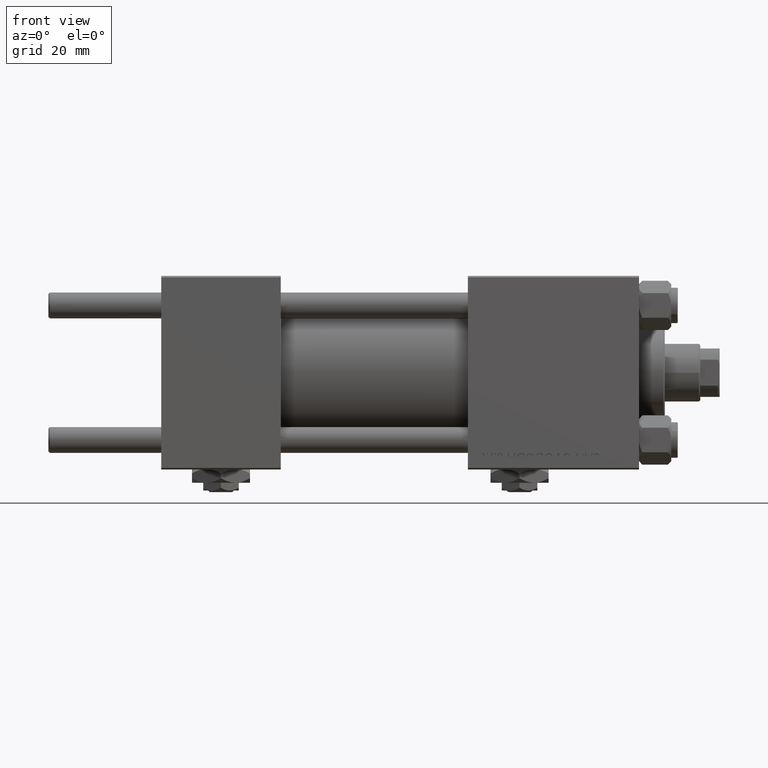
[diagram: clean part render]
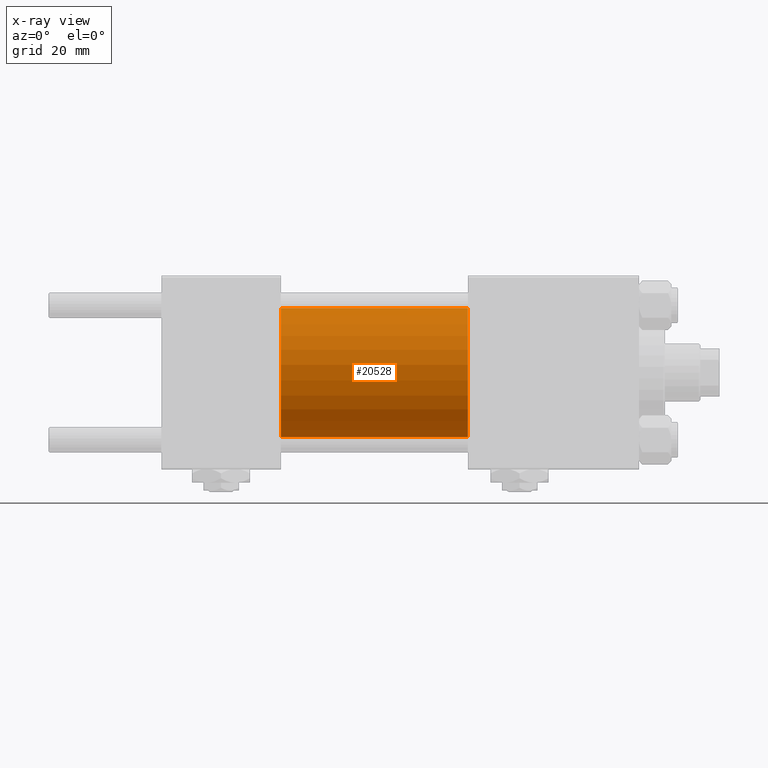
[diagram: x-ray — body ghosted, one internal face saturated and labeled with its STEP entity id]
A machine part, front view, then the same camera in x-ray: the body is ghosted and one INTERNAL B-rep face — a face not visible from any outside direction — is saturated and labeled: STEP entity #20528.
In plain terms, the highlighted cylindrical surface (partial cylindrical patch) has radius 20 mm, axis along (-1, -0, -0).
Its self-contained STEP definition (entity closure, byte-faithful):
#1116 = CIRCLE ( 'NONE', #12027, 20.00000000000000000 ) ;
#1186 = VECTOR ( 'NONE', #26924, 1000.000000000000000 ) ;
#2235 = CARTESIAN_POINT ( 'NONE',  ( 95.00000000000000000, 0.000000000000000000, 20.00000000000000000 ) ) ;
#4549 = VERTEX_POINT ( 'NONE', #48037 ) ;
#5497 = EDGE_CURVE ( 'NONE', #32325, #4549, #1116, .T. ) ;
#7806 = EDGE_CURVE ( 'NONE', #7945, #4549, #46887, .T. ) ;
#7945 = VERTEX_POINT ( 'NONE', #29501 ) ;
#9031 = DIRECTION ( 'NONE',  ( 0.000000000000000000, 0.000000000000000000, -1.000000000000000000 ) ) ;
#9144 = EDGE_LOOP ( 'NONE', ( #36385, #15904, #27548, #45614 ) ) ;
#10572 = CARTESIAN_POINT ( 'NONE',  ( 37.00000000000000000, 0.000000000000000000, 0.000000000000000000 ) ) ;
#10811 = CYLINDRICAL_SURFACE ( 'NONE', #39134, 20.00000000000000000 ) ;
#12027 = AXIS2_PLACEMENT_3D ( 'NONE', #10572, #14506, #17915 ) ;
#14506 = DIRECTION ( 'NONE',  ( 1.000000000000000000, 0.000000000000000000, 0.000000000000000000 ) ) ;
#15904 = ORIENTED_EDGE ( 'NONE', *, *, #7806, .T. ) ;
#17915 = DIRECTION ( 'NONE',  ( 0.000000000000000000, 0.000000000000000000, -1.000000000000000000 ) ) ;
#18235 = DIRECTION ( 'NONE',  ( -1.000000000000000000, -0.000000000000000000, -0.000000000000000000 ) ) ;
#19814 = CARTESIAN_POINT ( 'NONE',  ( 95.00000000000000000, 2.449293598294706119E-15, -20.00000000000000000 ) ) ;
#20528 = ADVANCED_FACE ( 'NONE', ( #33902 ), #10811, .F. ) ;
#21058 = CARTESIAN_POINT ( 'NONE',  ( 95.00000000000000000, 0.000000000000000000, 20.00000000000000000 ) ) ;
#21096 = CARTESIAN_POINT ( 'NONE',  ( 95.00000000000000000, 0.000000000000000000, 0.000000000000000000 ) ) ;
#21615 = DIRECTION ( 'NONE',  ( 1.000000000000000000, 0.000000000000000000, 0.000000000000000000 ) ) ;
#22362 = CARTESIAN_POINT ( 'NONE',  ( 95.00000000000000000, 0.000000000000000000, 0.000000000000000000 ) ) ;
#26924 = DIRECTION ( 'NONE',  ( -1.000000000000000000, -0.000000000000000000, -0.000000000000000000 ) ) ;
#27524 = CIRCLE ( 'NONE', #34238, 20.00000000000000000 ) ;
#27548 = ORIENTED_EDGE ( 'NONE', *, *, #5497, .F. ) ;
#27651 = CARTESIAN_POINT ( 'NONE',  ( 37.00000000000000000, 0.000000000000000000, 20.00000000000000000 ) ) ;
#28727 = EDGE_CURVE ( 'NONE', #32529, #7945, #27524, .T. ) ;
#29501 = CARTESIAN_POINT ( 'NONE',  ( 95.00000000000000000, 2.449293598294706119E-15, -20.00000000000000000 ) ) ;
#30579 = LINE ( 'NONE', #2235, #46096 ) ;
#32325 = VERTEX_POINT ( 'NONE', #27651 ) ;
#32529 = VERTEX_POINT ( 'NONE', #21058 ) ;
#33902 = FACE_OUTER_BOUND ( 'NONE', #9144, .T. ) ;
#34238 = AXIS2_PLACEMENT_3D ( 'NONE', #21096, #21615, #9031 ) ;
#36385 = ORIENTED_EDGE ( 'NONE', *, *, #28727, .T. ) ;
#39134 = AXIS2_PLACEMENT_3D ( 'NONE', #22362, #46516, #49928 ) ;
#45614 = ORIENTED_EDGE ( 'NONE', *, *, #47228, .F. ) ;
#46096 = VECTOR ( 'NONE', #18235, 1000.000000000000000 ) ;
#46516 = DIRECTION ( 'NONE',  ( -1.000000000000000000, -0.000000000000000000, -0.000000000000000000 ) ) ;
#46887 = LINE ( 'NONE', #19814, #1186 ) ;
#47228 = EDGE_CURVE ( 'NONE', #32529, #32325, #30579, .T. ) ;
#48037 = CARTESIAN_POINT ( 'NONE',  ( 37.00000000000000000, 2.449293598294706119E-15, -20.00000000000000000 ) ) ;
#49928 = DIRECTION ( 'NONE',  ( 0.000000000000000000, 0.000000000000000000, 1.000000000000000000 ) ) ;